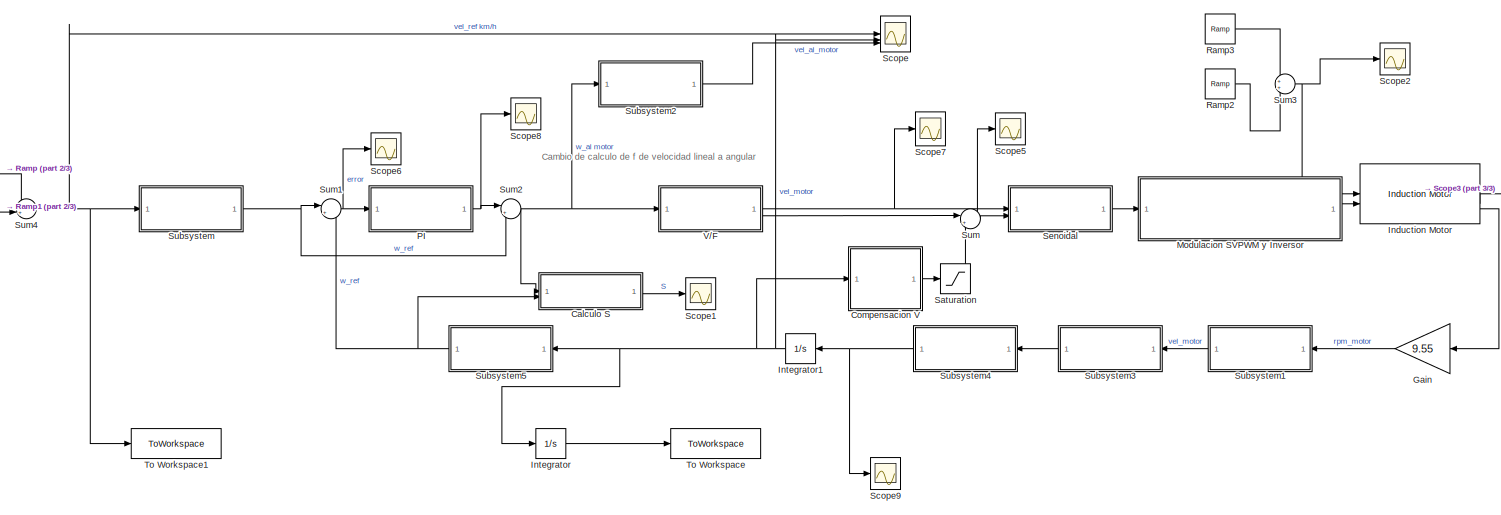
[diagram: root canvas - part 1/3, most of the canvas]
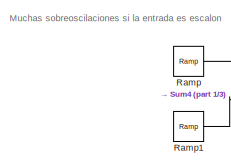
[diagram: root canvas - part 2/3, middle left region]
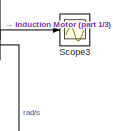
[diagram: root canvas - part 3/3, middle right region]
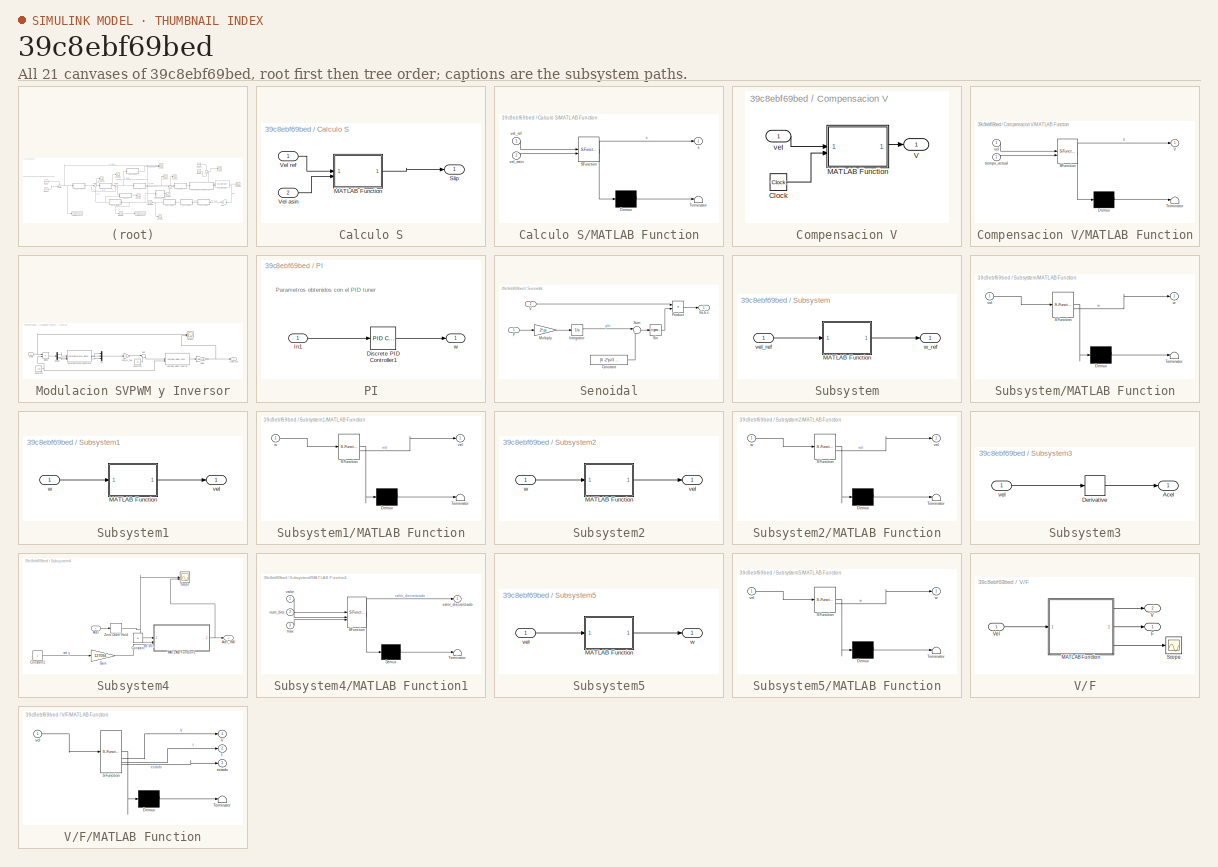
[diagram: thumbnail index - all 21 canvases of the model, root first then tree order]
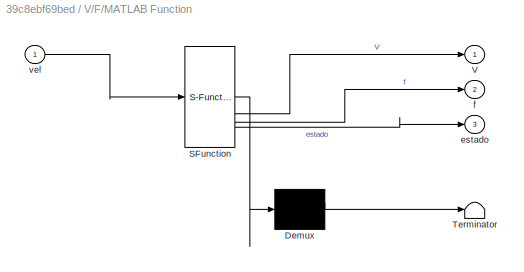
MODEL slx_39c8ebf69bed
KIND model
CONFIG AbsTol = auto
CONFIG EnableMultiTasking = off
CONFIG FixedStep = 0.01
CONFIG MaxStep = 0.0005
CONFIG MinStep = auto
CONFIG RelTol = 1e-3
CONFIG SampleTimeConstraint = Unconstrained
CONFIG SolverName = VariableStepAuto
CONFIG StartTime = 0.0
CONFIG StopTime = 5
BLOCK [SubSystem] Calculo S
BLOCK [SubSystem] Calculo S/MATLAB Function
  ErrorFcn = Stateflow.Translate.translate
  LibrarySourceBlock = simulink/User-Defined\nFunctions/MATLAB Function
  PermitHierarchicalResolution = ExplicitOnly
  SFBlockType = MATLAB Function
  TreatAsAtomicUnit = on
BLOCK [Demux] Calculo S/MATLAB Function/ Demux 
  Outputs = 1
BLOCK [S-Function] Calculo S/MATLAB Function/ SFunction 
  EnableBusSupport = on
  FunctionName = sf_sfun
  PortCounts = [2 2]
  SFcnIsStateOwnerBlock = off
  SFunctionDeploymentMode = off
  Tag = Stateflow S-Function 5
BLOCK [Terminator] Calculo S/MATLAB Function/ Terminator 
BLOCK [Outport] Calculo S/MATLAB Function/s
BLOCK [Inport] Calculo S/MATLAB Function/vel_asin
  Port = 2
BLOCK [Inport] Calculo S/MATLAB Function/vel_ref
BLOCK [Outport] Calculo S/Slip
BLOCK [Inport] Calculo S/Vel asin
  Port = 2
BLOCK [Inport] Calculo S/Vel ref
BLOCK [SubSystem] Compensacion V
BLOCK [Clock] Compensacion V/Clock
BLOCK [SubSystem] Compensacion V/MATLAB Function
  ErrorFcn = Stateflow.Translate.translate
  LibrarySourceBlock = simulink/User-Defined\nFunctions/MATLAB Function
  PermitHierarchicalResolution = ExplicitOnly
  SFBlockType = MATLAB Function
  TreatAsAtomicUnit = on
BLOCK [Demux] Compensacion V/MATLAB Function/ Demux 
  Outputs = 1
BLOCK [S-Function] Compensacion V/MATLAB Function/ SFunction 
  EnableBusSupport = on
  FunctionName = sf_sfun
  PortCounts = [2 2]
  SFcnIsStateOwnerBlock = off
  SFunctionDeploymentMode = off
  Tag = Stateflow S-Function 6
BLOCK [Terminator] Compensacion V/MATLAB Function/ Terminator 
BLOCK [Outport] Compensacion V/MATLAB Function/V
BLOCK [Inport] Compensacion V/MATLAB Function/tiempo_actual
  Port = 2
BLOCK [Inport] Compensacion V/MATLAB Function/vel
BLOCK [Outport] Compensacion V/V
BLOCK [Inport] Compensacion V/vel
BLOCK [Gain] Gain
  Gain = 9.55
  NameLocation = top
BLOCK [Reference] Induction Motor  REF=autolibim/Induction Motor
  LibrarySourceBlock = mcblib/Electrical Systems/Motors/Induction Motor
  SourceBlock = autolibim/Induction Motor
  SourceType = Induction Motor
BLOCK [Integrator] Integrator
BLOCK [Integrator] Integrator1
  NameLocation = top
BLOCK [SubSystem] Modulacion SVPWM y Inversor
BLOCK [Reference] Modulacion SVPWM y Inversor/Average-Value Inverter  REF=mcbplantlib/Average-Value Inverter
  LibrarySourceBlock = mcblib/Electrical Systems/Inverters/Average-Value Inverter
  SourceBlock = mcbplantlib/Average-Value Inverter
  SourceType = Average Value Inverter
BLOCK [Constant] Modulacion SVPWM y Inversor/Constant
  Value = 200
BLOCK [Constant] Modulacion SVPWM y Inversor/Constant1
  SampleTime = -1
  Value = 0.5
BLOCK [Demux] Modulacion SVPWM y Inversor/Demux
  Outputs = 3
BLOCK [Product] Modulacion SVPWM y Inversor/Divide
  Inputs = */
BLOCK [Gain] Modulacion SVPWM y Inversor/Gain1
  Gain = sqrt(3)
BLOCK [Mux] Modulacion SVPWM y Inversor/Mux
  DisplayOption = bar
  Inputs = 3
BLOCK [Gain] Modulacion SVPWM y Inversor/One_by_Two
  Gain = 0.5
  OutDataTypeStr = Inherit: Same as input
  RndMeth = Simplest
BLOCK [Reference] Modulacion SVPWM y Inversor/PWM Reference Generator  REF=mcbcontrolslib/PWM Reference Generator
  LibrarySourceBlock = mcbhdllib/Controls/Math Transforms/PWM Reference Generator
  SourceBlock = mcbcontrolslib/PWM Reference Generator
  SourceType = PWM Modulation
BLOCK [Scope] Modulacion SVPWM y Inversor/Scope1
  Floating = off
  NumInputPorts = 2
  ScopeSpecificationString = Simulink.scopes.TimeScopeBlockCfg('CurrentConfiguration', extmgr.ConfigurationSet(extmgr.Configuration('Core','General UI',true),extmgr.Configuration('Core','Source UI',true),extmgr.Configuration('Sources','WiredSimulink',true,'DataLoggingVariableName','ScopeData1'),extmgr.Configuration('Visuals','Time Domain',true,'SerializedDisplays',{struct('MinYLimReal','-37.5','MaxYLimReal','37.5','YLabelReal...<+1608ch>
BLOCK [Sum] Modulacion SVPWM y Inversor/Sum
  AccumDataTypeStr = Inherit: Same as first input
  Inputs = |++
BLOCK [Inport] Modulacion SVPWM y Inversor/V_abc
BLOCK [Outport] Modulacion SVPWM y Inversor/V_abc_out
BLOCK [SubSystem] PI
BLOCK [Reference] PI/Discrete PID Controller1  REF=slpidlib/PID Controller
  LibrarySourceBlock = simulink/Discrete/Discrete PID Controller
  SourceBlock = slpidlib/PID Controller
  SourceType = PID 1dof
BLOCK [Inport] PI/In1
BLOCK [Outport] PI/w
BLOCK [Reference] Ramp  REF=simulink/Sources/Ramp
  SourceBlock = simulink/Sources/Ramp
  SourceType = Ramp
BLOCK [Reference] Ramp1  REF=simulink/Sources/Ramp
  SourceBlock = simulink/Sources/Ramp
  SourceType = Ramp
BLOCK [Reference] Ramp2  REF=simulink/Sources/Ramp
  SourceBlock = simulink/Sources/Ramp
  SourceType = Ramp
BLOCK [Reference] Ramp3  REF=simulink/Sources/Ramp
  SourceBlock = simulink/Sources/Ramp
  SourceType = Ramp
BLOCK [Saturate] Saturation
  LowerLimit = 0
  UpperLimit = 30
BLOCK [Scope] Scope
  Floating = off
  NumInputPorts = 3
  ScopeSpecificationString = Simulink.scopes.TimeScopeBlockCfg('CurrentConfiguration', extmgr.ConfigurationSet(extmgr.Configuration('Core','General UI',true),extmgr.Configuration('Core','Source UI',true),extmgr.Configuration('Sources','WiredSimulink',true,'DataLoggingVariableName','ScopeData2'),extmgr.Configuration('Visuals','Time Domain',true,'SerializedDisplays',{struct('MinYLimReal','-4.42024','MaxYLimReal','39.72398','YLa...<+1539ch>
BLOCK [Scope] Scope1
  Floating = off
  NumInputPorts = 1
  ScopeSpecificationString = Simulink.scopes.TimeScopeBlockCfg('CurrentConfiguration', extmgr.ConfigurationSet(extmgr.Configuration('Core','General UI',true),extmgr.Configuration('Core','Source UI',true),extmgr.Configuration('Sources','WiredSimulink',true,'DataLoggingVariableName','ScopeData4'),extmgr.Configuration('Visuals','Time Domain',true,'SerializedDisplays',{struct('MinYLimReal','-0.0094','MaxYLimReal','0.02408','YLabe...<+1377ch>
BLOCK [Scope] Scope2
  Floating = off
  NumInputPorts = 1
  ScopeSpecificationString = Simulink.scopes.TimeScopeBlockCfg('CurrentConfiguration', extmgr.ConfigurationSet(extmgr.Configuration('Core','General UI',true),extmgr.Configuration('Core','Source UI',true),extmgr.Configuration('Sources','WiredSimulink',true,'DataLoggingVariableName','ScopeData1'),extmgr.Configuration('Visuals','Time Domain',true,'SerializedDisplays',{struct('MinYLimReal','-0.30625','MaxYLimReal','2.75625','YLab...<+1396ch>
BLOCK [Scope] Scope3
  Floating = off
  NumInputPorts = 1
  ScopeSpecificationString = Simulink.scopes.TimeScopeBlockCfg('CurrentConfiguration', extmgr.ConfigurationSet(extmgr.Configuration('Core','General UI',true),extmgr.Configuration('Core','Source UI',true),extmgr.Configuration('Sources','WiredSimulink',true,'DataLoggingVariableName','ScopeData1'),extmgr.Configuration('Visuals','Time Domain',true,'SerializedDisplays',{struct('MinYLimReal','1.31227','MaxYLimReal','1.57808','YLabe...<+1491ch>
BLOCK [Scope] Scope5
  Floating = off
  NumInputPorts = 1
  ScopeSpecificationString = Simulink.scopes.TimeScopeBlockCfg('CurrentConfiguration', extmgr.ConfigurationSet(extmgr.Configuration('Core','General UI',true),extmgr.Configuration('Core','Source UI',true),extmgr.Configuration('Sources','WiredSimulink',true,'DataLoggingVariableName','ScopeData2'),extmgr.Configuration('Visuals','Time Domain',true,'SerializedDisplays',{struct('MinYLimReal','6.25','MaxYLimReal','243.75','YLabelRea...<+1453ch>
BLOCK [Scope] Scope6
  Floating = off
  NumInputPorts = 1
  ScopeSpecificationString = Simulink.scopes.TimeScopeBlockCfg('CurrentConfiguration', extmgr.ConfigurationSet(extmgr.Configuration('Core','General UI',true),extmgr.Configuration('Core','Source UI',true),extmgr.Configuration('Sources','WiredSimulink',true,'DataLoggingVariableName','ScopeData3'),extmgr.Configuration('Visuals','Time Domain',true,'SerializedDisplays',{struct('MinYLimReal','1.53012','MaxYLimReal','4.23631','YLabe...<+1381ch>
BLOCK [Scope] Scope7
  Floating = off
  NumInputPorts = 1
  ScopeSpecificationString = Simulink.scopes.TimeScopeBlockCfg('CurrentConfiguration', extmgr.ConfigurationSet(extmgr.Configuration('Core','General UI',true),extmgr.Configuration('Core','Source UI',true),extmgr.Configuration('Sources','WiredSimulink',true,'DataLoggingVariableName','ScopeData1'),extmgr.Configuration('Visuals','Time Domain',true,'SerializedDisplays',{struct('MinYLimReal','-5.36184','MaxYLimReal','48.25656','YLa...<+1387ch>
BLOCK [Scope] Scope8
  Floating = off
  NumInputPorts = 1
  ScopeSpecificationString = Simulink.scopes.TimeScopeBlockCfg('CurrentConfiguration', extmgr.ConfigurationSet(extmgr.Configuration('Core','General UI',true),extmgr.Configuration('Core','Source UI',true),extmgr.Configuration('Sources','WiredSimulink',true,'DataLoggingVariableName','ScopeData1'),extmgr.Configuration('Visuals','Time Domain',true,'SerializedDisplays',{struct('MinYLimReal','2.65957','MaxYLimReal','2.66076','YLabe...<+1378ch>
BLOCK [Scope] Scope9
  Floating = off
  NumInputPorts = 1
  ScopeSpecificationString = Simulink.scopes.TimeScopeBlockCfg('CurrentConfiguration', extmgr.ConfigurationSet(extmgr.Configuration('Core','General UI',true),extmgr.Configuration('Core','Source UI',true),extmgr.Configuration('Sources','WiredSimulink',true,'DataLoggingVariableName','ScopeData1'),extmgr.Configuration('Visuals','Time Domain',true,'SerializedDisplays',{struct('MinYLimReal','-95.16641','MaxYLimReal','204.90598','Y...<+1398ch>
BLOCK [SubSystem] Senoidal
BLOCK [Constant] Senoidal/Constant
  Value = [0 -2*pi/3 2*pi/3]
BLOCK [Inport] Senoidal/F
BLOCK [Integrator] Senoidal/Integrator
  WrapState = on
BLOCK [Gain] Senoidal/Multiply
  Gain = 2*pi
BLOCK [Product] Senoidal/Product
BLOCK [Trigonometry] Senoidal/Sin
BLOCK [Sum] Senoidal/Sum
  Inputs = |++
BLOCK [Inport] Senoidal/V
  Port = 2
BLOCK [Outport] Senoidal/Va,b,c
BLOCK [SubSystem] Subsystem
BLOCK [SubSystem] Subsystem/MATLAB Function
  ErrorFcn = Stateflow.Translate.translate
  LibrarySourceBlock = simulink/User-Defined\nFunctions/MATLAB Function
  PermitHierarchicalResolution = ExplicitOnly
  SFBlockType = MATLAB Function
  TreatAsAtomicUnit = on
BLOCK [Demux] Subsystem/MATLAB Function/ Demux 
  Outputs = 1
BLOCK [S-Function] Subsystem/MATLAB Function/ SFunction 
  EnableBusSupport = on
  FunctionName = sf_sfun
  PortCounts = [1 2]
  SFcnIsStateOwnerBlock = off
  SFunctionDeploymentMode = off
  Tag = Stateflow S-Function 1
BLOCK [Terminator] Subsystem/MATLAB Function/ Terminator 
BLOCK [Inport] Subsystem/MATLAB Function/vel
BLOCK [Outport] Subsystem/MATLAB Function/w
BLOCK [Inport] Subsystem/vel_ref
BLOCK [Outport] Subsystem/w_ref
BLOCK [SubSystem] Subsystem1
  NameLocation = top
BLOCK [SubSystem] Subsystem1/MATLAB Function
  ErrorFcn = Stateflow.Translate.translate
  LibrarySourceBlock = simulink/User-Defined\nFunctions/MATLAB Function
  PermitHierarchicalResolution = ExplicitOnly
  SFBlockType = MATLAB Function
  TreatAsAtomicUnit = on
BLOCK [Demux] Subsystem1/MATLAB Function/ Demux 
  Outputs = 1
BLOCK [S-Function] Subsystem1/MATLAB Function/ SFunction 
  EnableBusSupport = on
  FunctionName = sf_sfun
  PortCounts = [1 2]
  SFcnIsStateOwnerBlock = off
  SFunctionDeploymentMode = off
  Tag = Stateflow S-Function 3
BLOCK [Terminator] Subsystem1/MATLAB Function/ Terminator 
BLOCK [Outport] Subsystem1/MATLAB Function/vel
BLOCK [Inport] Subsystem1/MATLAB Function/w
BLOCK [Outport] Subsystem1/vel
BLOCK [Inport] Subsystem1/w
BLOCK [SubSystem] Subsystem2
BLOCK [SubSystem] Subsystem2/MATLAB Function
  ErrorFcn = Stateflow.Translate.translate
  LibrarySourceBlock = simulink/User-Defined\nFunctions/MATLAB Function
  PermitHierarchicalResolution = ExplicitOnly
  SFBlockType = MATLAB Function
  TreatAsAtomicUnit = on
BLOCK [Demux] Subsystem2/MATLAB Function/ Demux 
  Outputs = 1
BLOCK [S-Function] Subsystem2/MATLAB Function/ SFunction 
  EnableBusSupport = on
  FunctionName = sf_sfun
  PortCounts = [1 2]
  SFcnIsStateOwnerBlock = off
  SFunctionDeploymentMode = off
  Tag = Stateflow S-Function 4
BLOCK [Terminator] Subsystem2/MATLAB Function/ Terminator 
BLOCK [Outport] Subsystem2/MATLAB Function/vel
BLOCK [Inport] Subsystem2/MATLAB Function/w
BLOCK [Outport] Subsystem2/vel
BLOCK [Inport] Subsystem2/w
BLOCK [SubSystem] Subsystem3
  NameLocation = top
BLOCK [Outport] Subsystem3/Acel
BLOCK [Derivative] Subsystem3/Derivative
BLOCK [Inport] Subsystem3/vel
BLOCK [SubSystem] Subsystem4
  NameLocation = top
BLOCK [Inport] Subsystem4/Acel
BLOCK [Outport] Subsystem4/Acel_IMU
BLOCK [Constant] Subsystem4/Constant
  Value = 16
BLOCK [Constant] Subsystem4/Constant1
  Value = 2
BLOCK [Gain] Subsystem4/Gain
  Gain = 127094
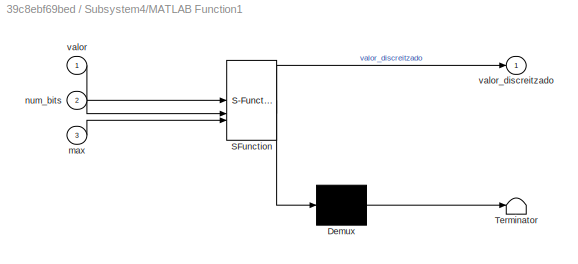
BLOCK [SubSystem] Subsystem4/MATLAB Function1
  ErrorFcn = Stateflow.Translate.translate
  LibrarySourceBlock = simulink/User-Defined\nFunctions/MATLAB Function
  PermitHierarchicalResolution = ExplicitOnly
  SFBlockType = MATLAB Function
  TreatAsAtomicUnit = on
BLOCK [Demux] Subsystem4/MATLAB Function1/ Demux 
  Outputs = 1
BLOCK [S-Function] Subsystem4/MATLAB Function1/ SFunction 
  EnableBusSupport = on
  FunctionName = sf_sfun
  PortCounts = [3 2]
  SFcnIsStateOwnerBlock = off
  SFunctionDeploymentMode = off
  Tag = Stateflow S-Function 9
BLOCK [Terminator] Subsystem4/MATLAB Function1/ Terminator 
BLOCK [Inport] Subsystem4/MATLAB Function1/max
  Port = 3
BLOCK [Inport] Subsystem4/MATLAB Function1/num_bits
  Port = 2
BLOCK [Inport] Subsystem4/MATLAB Function1/valor
BLOCK [Outport] Subsystem4/MATLAB Function1/valor_discreitzado
BLOCK [Scope] Subsystem4/Scope
  Floating = off
  NumInputPorts = 2
  ScopeSpecificationString = Simulink.scopes.TimeScopeBlockCfg('CurrentConfiguration', extmgr.ConfigurationSet(extmgr.Configuration('Core','General UI',true),extmgr.Configuration('Core','Source UI',true),extmgr.Configuration('Sources','WiredSimulink',true,'DataLoggingVariableName','ScopeData2'),extmgr.Configuration('Visuals','Time Domain',true,'SerializedDisplays',{struct('MinYLimReal','-98.78123','MaxYLimReal','204.9087','YL...<+1470ch>
BLOCK [ZeroOrderHold] Subsystem4/Zero-Order Hold
  SampleTime = 0.0005
BLOCK [SubSystem] Subsystem5
  NameLocation = top
BLOCK [SubSystem] Subsystem5/MATLAB Function
  ErrorFcn = Stateflow.Translate.translate
  LibrarySourceBlock = simulink/User-Defined\nFunctions/MATLAB Function
  PermitHierarchicalResolution = ExplicitOnly
  SFBlockType = MATLAB Function
  TreatAsAtomicUnit = on
BLOCK [Demux] Subsystem5/MATLAB Function/ Demux 
  Outputs = 1
BLOCK [S-Function] Subsystem5/MATLAB Function/ SFunction 
  EnableBusSupport = on
  FunctionName = sf_sfun
  PortCounts = [1 2]
  SFcnIsStateOwnerBlock = off
  SFunctionDeploymentMode = off
  Tag = Stateflow S-Function 7
BLOCK [Terminator] Subsystem5/MATLAB Function/ Terminator 
BLOCK [Inport] Subsystem5/MATLAB Function/vel
BLOCK [Outport] Subsystem5/MATLAB Function/w
BLOCK [Inport] Subsystem5/vel
BLOCK [Outport] Subsystem5/w
BLOCK [Sum] Sum
  Inputs = |+-
BLOCK [Sum] Sum1
  Inputs = |+-
BLOCK [Sum] Sum2
  Inputs = |++
BLOCK [Sum] Sum3
BLOCK [Sum] Sum4
  Inputs = ++|
BLOCK [ToWorkspace] To Workspace
  FixptAsFi = on
  MaxDataPoints = inf
  SampleTime = -1
  VariableName = pos
BLOCK [ToWorkspace] To Workspace1
  FixptAsFi = on
  MaxDataPoints = inf
  SampleTime = -1
  VariableName = vel_ref
BLOCK [SubSystem] V//F
BLOCK [Outport] V//F/F
BLOCK [SubSystem] V//F/MATLAB Function
  ErrorFcn = Stateflow.Translate.translate
  LibrarySourceBlock = simulink/User-Defined\nFunctions/MATLAB Function
  PermitHierarchicalResolution = ExplicitOnly
  SFBlockType = MATLAB Function
  TreatAsAtomicUnit = on
BLOCK [Demux] V//F/MATLAB Function/ Demux 
  Outputs = 1
BLOCK [S-Function] V//F/MATLAB Function/ SFunction 
  EnableBusSupport = on
  FunctionName = sf_sfun
  PortCounts = [1 4]
  SFcnIsStateOwnerBlock = off
  SFunctionDeploymentMode = off
  Tag = Stateflow S-Function 2
BLOCK [Terminator] V//F/MATLAB Function/ Terminator 
BLOCK [Outport] V//F/MATLAB Function/V
BLOCK [Outport] V//F/MATLAB Function/estado
  Port = 3
BLOCK [Outport] V//F/MATLAB Function/f
  Port = 2
BLOCK [Inport] V//F/MATLAB Function/vel
BLOCK [Scope] V//F/Scope
  Floating = off
  NumInputPorts = 1
  ScopeSpecificationString = Simulink.scopes.TimeScopeBlockCfg('CurrentConfiguration', extmgr.ConfigurationSet(extmgr.Configuration('Core','General UI',true),extmgr.Configuration('Core','Source UI',true),extmgr.Configuration('Sources','WiredSimulink',true,'DataLoggingVariableName','ScopeData3'),extmgr.Configuration('Visuals','Time Domain',true,'SerializedDisplays',{struct('MinYLimReal','-0.125','MaxYLimReal','1.125','YLabelRe...<+1400ch>
BLOCK [Outport] V//F/V
  Port = 2
BLOCK [Inport] V//F/Vel
ANNOTATION (root): Cambio de calculo de f de velocidad lineal a angular
ANNOTATION (root): Muchas sobreoscilaciones si la entrada es escalon
ANNOTATION PI: Parametros obtenidos con el PID tuner
LINE Calculo S/MATLAB Function:1 -> Calculo S/Slip:1
LINE Calculo S/Vel asin:1 -> Calculo S/MATLAB Function:2
LINE Calculo S/Vel ref:1 -> Calculo S/MATLAB Function:1
LINE Calculo S:1 -> Scope1:1
LINE Compensacion V/Clock:1 -> Compensacion V/MATLAB Function:2
LINE Compensacion V/MATLAB Function:1 -> Compensacion V/V:1
LINE Compensacion V/vel:1 -> Compensacion V/MATLAB Function:1
LINE Compensacion V:1 -> Saturation:1
LINE Gain:1 -> Subsystem1:1
LINE Induction Motor:2 -> Scope3:1
LINE Induction Motor:3 -> Gain:1
NET Integrator1:1 -> Compensacion V:1, Integrator:1, Scope:2, Subsystem5:1
LINE Integrator:1 -> To Workspace:1
LINE Modulacion SVPWM y Inversor/Average-Value Inverter:1 -> Modulacion SVPWM y Inversor/Gain1:1
LINE Modulacion SVPWM y Inversor/Constant1:1 -> Modulacion SVPWM y Inversor/Sum:2
NET Modulacion SVPWM y Inversor/Constant:1 -> Modulacion SVPWM y Inversor/Average-Value Inverter:2, Modulacion SVPWM y Inversor/Divide:2
LINE Modulacion SVPWM y Inversor/Demux:1 -> Modulacion SVPWM y Inversor/PWM Reference Generator:1
LINE Modulacion SVPWM y Inversor/Demux:2 -> Modulacion SVPWM y Inversor/PWM Reference Generator:2
LINE Modulacion SVPWM y Inversor/Demux:3 -> Modulacion SVPWM y Inversor/PWM Reference Generator:3
LINE Modulacion SVPWM y Inversor/Divide:1 -> Modulacion SVPWM y Inversor/Demux:1
NET Modulacion SVPWM y Inversor/Gain1:1 -> Modulacion SVPWM y Inversor/Scope1:2, Modulacion SVPWM y Inversor/V_abc_out:1
LINE Modulacion SVPWM y Inversor/Mux:1 -> Modulacion SVPWM y Inversor/One_by_Two:1
LINE Modulacion SVPWM y Inversor/One_by_Two:1 -> Modulacion SVPWM y Inversor/Sum:1
LINE Modulacion SVPWM y Inversor/PWM Reference Generator:1 -> Modulacion SVPWM y Inversor/Mux:1
LINE Modulacion SVPWM y Inversor/PWM Reference Generator:2 -> Modulacion SVPWM y Inversor/Mux:2
LINE Modulacion SVPWM y Inversor/PWM Reference Generator:3 -> Modulacion SVPWM y Inversor/Mux:3
LINE Modulacion SVPWM y Inversor/Sum:1 -> Modulacion SVPWM y Inversor/Average-Value Inverter:1
NET Modulacion SVPWM y Inversor/V_abc:1 -> Modulacion SVPWM y Inversor/Divide:1, Modulacion SVPWM y Inversor/Scope1:1
LINE Modulacion SVPWM y Inversor:1 -> Induction Motor:2
LINE PI/Discrete PID Controller1:1 -> PI/w:1
LINE PI/In1:1 -> PI/Discrete PID Controller1:1
NET PI:1 -> Scope8:1, Sum2:1
LINE Ramp1:1 -> Sum4:2
LINE Ramp2:1 -> Sum3:2
LINE Ramp3:1 -> Sum3:1
LINE Ramp:1 -> Sum4:1
LINE Saturation:1 -> Sum:2
LINE Senoidal/Constant:1 -> Senoidal/Sum:2
LINE Senoidal/F:1 -> Senoidal/Multiply:1
LINE Senoidal/Integrator:1 -> Senoidal/Sum:1
LINE Senoidal/Multiply:1 -> Senoidal/Integrator:1
LINE Senoidal/Product:1 -> Senoidal/Va,b,c:1
LINE Senoidal/Sin:1 -> Senoidal/Product:2
LINE Senoidal/Sum:1 -> Senoidal/Sin:1
LINE Senoidal/V:1 -> Senoidal/Product:1
LINE Senoidal:1 -> Modulacion SVPWM y Inversor:1
LINE Subsystem/MATLAB Function:1 -> Subsystem/w_ref:1
LINE Subsystem/vel_ref:1 -> Subsystem/MATLAB Function:1
LINE Subsystem1/MATLAB Function:1 -> Subsystem1/vel:1
LINE Subsystem1/w:1 -> Subsystem1/MATLAB Function:1
LINE Subsystem1:1 -> Subsystem3:1
LINE Subsystem2/MATLAB Function:1 -> Subsystem2/vel:1
LINE Subsystem2/w:1 -> Subsystem2/MATLAB Function:1
LINE Subsystem2:1 -> Scope:3
LINE Subsystem3/Derivative:1 -> Subsystem3/Acel:1
LINE Subsystem3/vel:1 -> Subsystem3/Derivative:1
LINE Subsystem3:1 -> Subsystem4:1
LINE Subsystem4/Acel:1 -> Subsystem4/Zero-Order Hold:1
LINE Subsystem4/Constant1:1 -> Subsystem4/Gain:1
LINE Subsystem4/Constant:1 -> Subsystem4/MATLAB Function1:2
LINE Subsystem4/Gain:1 -> Subsystem4/MATLAB Function1:3
NET Subsystem4/MATLAB Function1:1 -> Subsystem4/Acel_IMU:1, Subsystem4/Scope:2
NET Subsystem4/Zero-Order Hold:1 -> Subsystem4/MATLAB Function1:1, Subsystem4/Scope:1
NET Subsystem4:1 -> Integrator1:1, Scope9:1
LINE Subsystem5/MATLAB Function:1 -> Subsystem5/w:1
LINE Subsystem5/vel:1 -> Subsystem5/MATLAB Function:1
NET Subsystem5:1 -> Calculo S:2, Sum1:2
NET Subsystem:1 -> Sum1:1, Sum2:2
NET Sum1:1 -> PI:1, Scope6:1
NET Sum2:1 -> Calculo S:1, Subsystem2:1, V//F:1
NET Sum3:1 -> Induction Motor:1, Scope2:1
NET Sum4:1 -> Scope:1, Subsystem:1, To Workspace1:1
NET Sum:1 -> Scope5:1, Senoidal:2
LINE V//F/MATLAB Function:1 -> V//F/V:1
LINE V//F/MATLAB Function:2 -> V//F/F:1
LINE V//F/MATLAB Function:3 -> V//F/Scope:1
LINE V//F/Vel:1 -> V//F/MATLAB Function:1
NET V//F:1 -> Scope7:1, Senoidal:1
LINE V//F:2 -> Sum:1
note: NET lines group one-source signal fan-out (src -> all destinations, sorted); 1:1 wires keep LINE
CHART Subsystem/MATLAB Function states=1 transitions=1
  STATE_LABEL 'eML_blk_kernel()'
  STATE_LABEL 'SCRIPT:\nfunction w = fcn(vel)\n\nnum_parejas_Polos=8;\n\n%Paso polar en metros\npaso_polar=0.114;\n\n%De km/h a m/s\nvel_m=vel/3.6;\n\ndistancia_angular_parejas_polos=2*pi/(num_parejas_Polos*2);\n\n%Velocidad en rad/s\nw=vel_m*distancia_angular_parejas_polos/paso_polar;\n\n%Velocidad en rpm\nw=w*9.54;\n'
CHART V//F/MATLAB Function states=1 transitions=1
  STATE_LABEL 'eML_blk_kernel()'
  STATE_LABEL 'SCRIPT:\nfunction [V,f,estado]= v_f(vel)\nestado=0;\nnum_parejas_Polos=8;\n\n%Velocidad en RPM\nf=vel*num_parejas_Polos/60;\n\nif(f==0)\n    f=0.0001;\n    V=0;\n    return\nend\n\n%F en HZ\n\n%Comprobar valores\nf_corte_inf=4;\nV_min=15;\nV_max=200;\nf_corte_sup=f_corte_inf*V_max/V_min;\n\nif(f<f_corte_inf)\n    V=V_min;\n    estado=0;\nelseif(f<f_corte_sup)\n    V=V_min/f_corte_inf*f;\n    estado=1;\nelse\n    V=V_max;\n    ...<+14ch>'
CHART Subsystem1/MATLAB Function states=1 transitions=1
  STATE_LABEL 'eML_blk_kernel()'
  STATE_LABEL 'SCRIPT:\nfunction vel = fcn(w)\n\n%Paso polar en metros\npaso_polar=0.114;\n\nnum_parejas_Polos=8;\n\ndistancia_angular_parejas_polos=2*pi/(num_parejas_Polos*2);\n\n%De rpm a rad/s\nw=w/9.54;\n\nvel_m=w*paso_polar/distancia_angular_parejas_polos;\n\n%De m/s a km/h\nvel=vel_m*3.6;'
CHART Subsystem2/MATLAB Function states=1 transitions=1
  STATE_LABEL 'eML_blk_kernel()'
  STATE_LABEL 'SCRIPT:\nfunction vel = fcn(w)\n\n%Paso polar en metros\npaso_polar=0.114;\n\nnum_parejas_Polos=8;\n\ndistancia_angular_parejas_polos=2*pi/(num_parejas_Polos*2);\n\n%De rpm a rad/s\nw=w/9.54;\n\nvel_m=w*paso_polar/distancia_angular_parejas_polos;\n\n%De m/s a km/h\nvel=vel_m*3.6;'
CHART Calculo S/MATLAB Function states=1 transitions=1
  STATE_LABEL 'eML_blk_kernel()'
  STATE_LABEL 'SCRIPT:\nfunction s = fcn(vel_ref,vel_asin)\n\nif(vel_ref==0)\n    s=0;\nelse\n   s=(vel_ref-vel_asin)/vel_ref;\n\nend\n'
CHART Compensacion V/MATLAB Function states=1 transitions=1
  STATE_LABEL 'eML_blk_kernel()'
  STATE_LABEL 'SCRIPT:\nfunction V= fcn(vel,tiempo_actual)\n\n%Inicializacion Variables\npersistent V_aux\nif isempty(V_aux)\n        V_aux = 0;\nend\n\npersistent T_aux\nif isempty(T_aux)\n        T_aux = 0;\nend\n\npersistent iniciado\nif isempty(iniciado)\n        iniciado=false;\nend\n\npersistent regimen_permanente\nif isempty(regimen_permanente)\n        regimen_permanente=false;\nend\n\n\n%Esperando al transitorio\nif(iniciado==fa...<+872ch>'
CHART Subsystem5/MATLAB Function states=1 transitions=1
  STATE_LABEL 'eML_blk_kernel()'
  STATE_LABEL 'SCRIPT:\nfunction w = fcn(vel)\n\nnum_parejas_Polos=8;\n\n%Paso polar en metros\npaso_polar=0.114;\n\n%De km/h a m/s\nvel_m=vel/3.6;\n\ndistancia_angular_parejas_polos=2*pi/(num_parejas_Polos*2);\n\n%Velocidad en rad/s\nw=vel_m*distancia_angular_parejas_polos/paso_polar;\n\n%Velocidad en rpm\nw=w*9.54;\n'
CHART Subsystem4/MATLAB Function1 states=1 transitions=1
  STATE_LABEL 'eML_blk_kernel()'
  STATE_LABEL 'SCRIPT:\nfunction valor_discreitzado  = fcn(valor,num_bits,max)\n\nmin=-max;\nnum_valores=2^num_bits;\nif(valor>max)\n    valor_discreitzado=max;\n    return\nend\nif(valor<min)\n    valor_discreitzado=min;\n    return\nend\n\n\nvalor_escalon=(max-min)/(num_valores-1);\n\n\ni=min;\n while(i<max)\n    if(i+valor_escalon/2>valor)\n        valor_discreitzado=i;\n        return\n    end\n    i=i+valor_escalon;\nend\n\n\n\n      v...<+27ch>'
CHART  states=0 transitions=0
CHART  states=0 transitions=0
CHART  states=0 transitions=0
CHART  states=0 transitions=0
CHART  states=0 transitions=0
CHART  states=0 transitions=0
CHART  states=0 transitions=0
CHART  states=0 transitions=0
